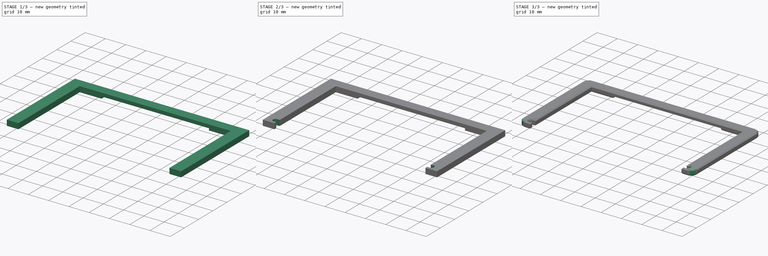
[diagram: build sequence overview — one tinted view per stage of 3, left to right]
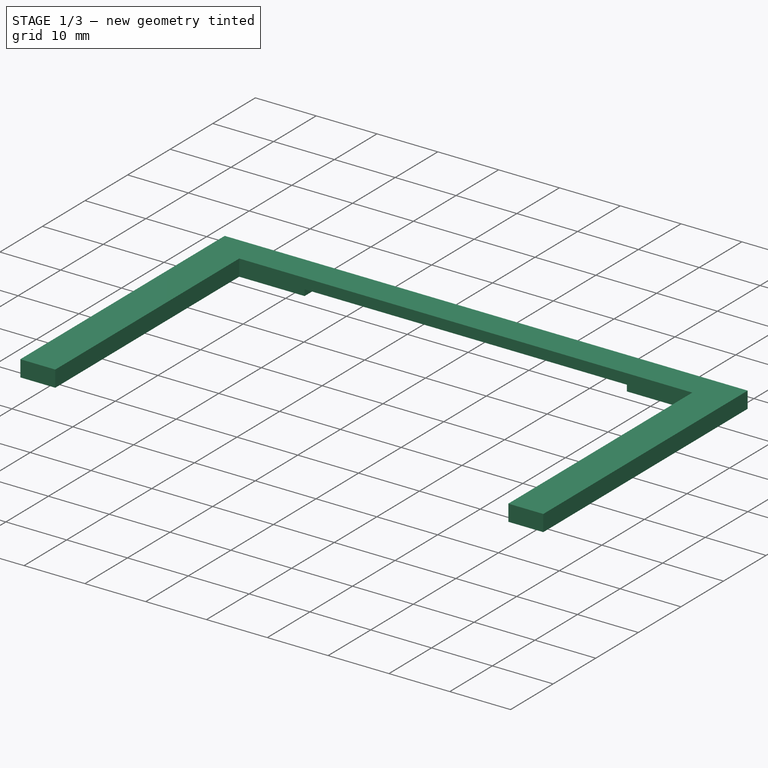
[diagram: stage 1 of 3 — iso view after this stage's code; geometry added in this stage tinted green]
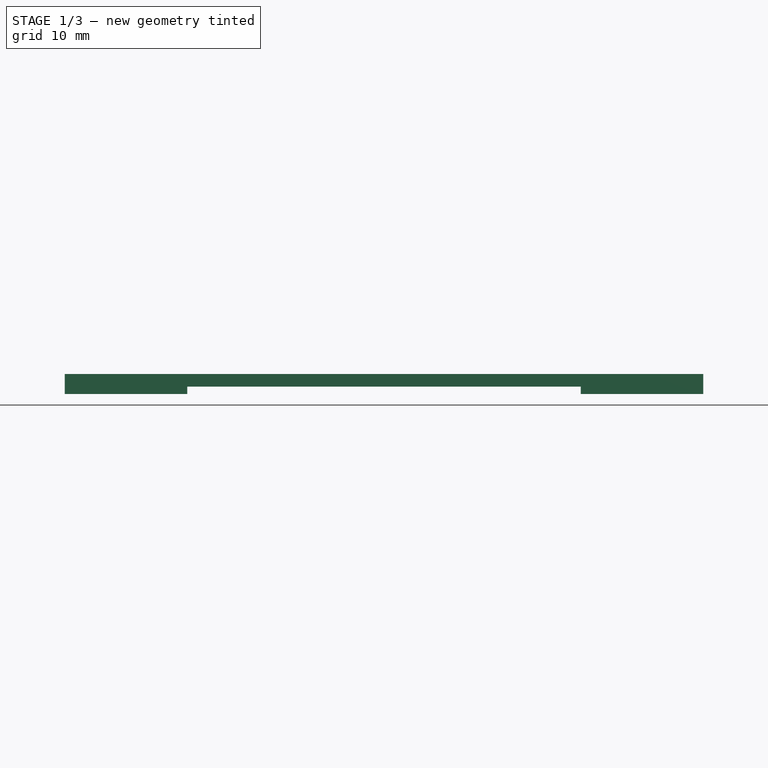
[diagram: stage 1 of 3 — front view after this stage's code; geometry added in this stage tinted green]
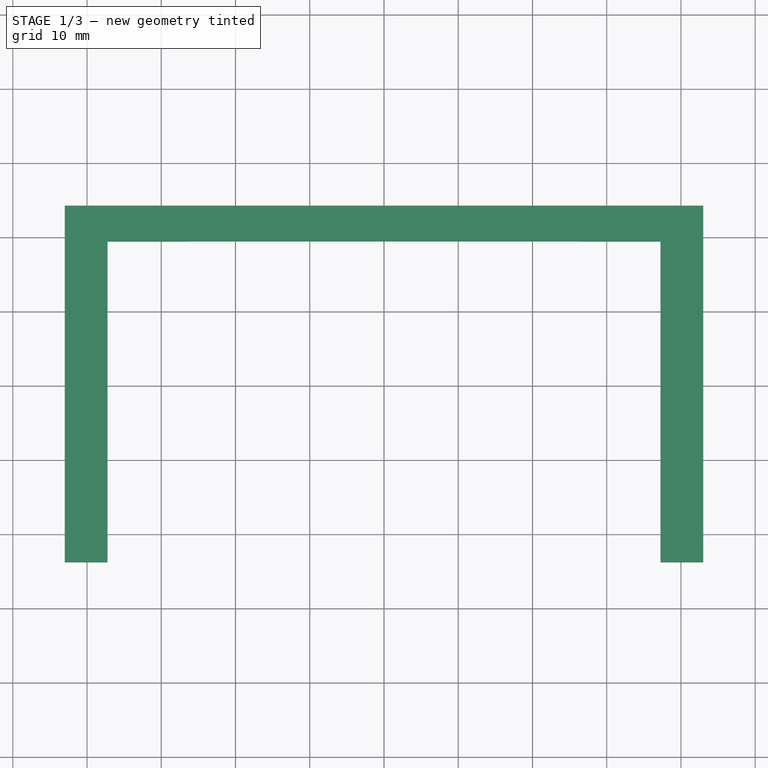
[diagram: stage 1 of 3 — top view after this stage's code; geometry added in this stage tinted green]
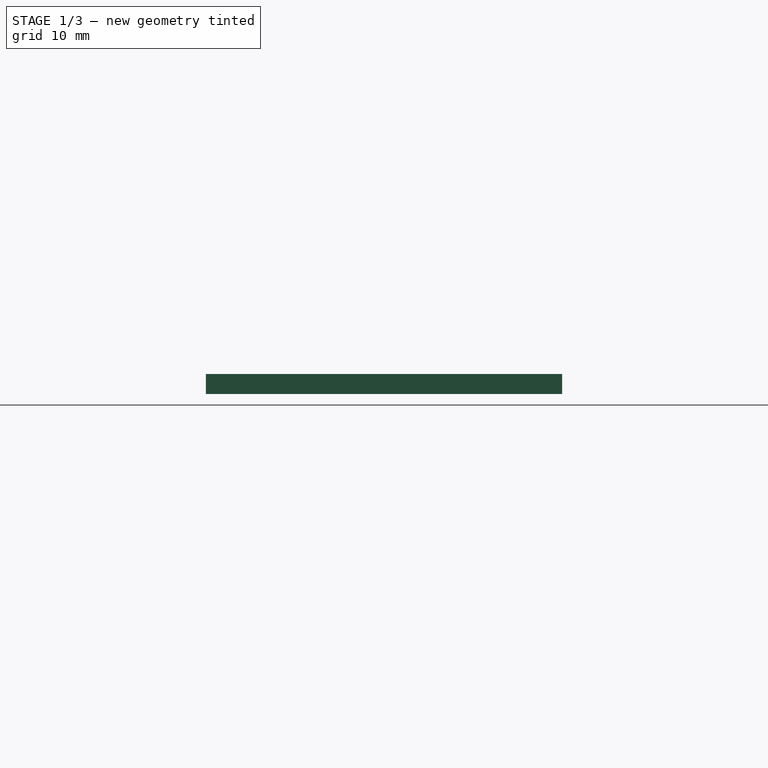
[diagram: stage 1 of 3 — right view after this stage's code; geometry added in this stage tinted green]
FCSTD DOCUMENT  (FreeCAD 0.21RUnknown)
Label: screen-frame
License: All rights reserved
LicenseURL: http://en.wikipedia.org/wiki/All_rights_reserved
objects: Sketcher::SketchObject×4, PartDesign::Pocket×2, PartDesign::Pad×1, PartDesign::Fillet×1, PartDesign::Chamfer×1, PartDesign::Body×1
note: 15 computed .brp shape members not serialized (recipe doc carries the construction recipe); baked Part::Feature solids carry a one-line shape summary decoded from their .brp

FEATURE [Sketcher::SketchObject] Sketch
  FullyConstrained = true
  MapMode = 5
  Support = -> [XY_Plane]
  sketch-geometry (20):
    g0: LineSegment StartX=-41 StartY=-23.75 StartZ=0 EndX=-41 EndY=23.75 EndZ=0
    g1: LineSegment StartX=-41 StartY=23.75 StartZ=0 EndX=41 EndY=23.75 EndZ=0
    g2: LineSegment StartX=41 StartY=23.75 StartZ=0 EndX=41 EndY=-23.75 EndZ=0
    g3: LineSegment StartX=41 StartY=-23.75 StartZ=0 EndX=-41 EndY=-23.75 EndZ=0
    g4: GeomPoint X=0 Y=0 Z=0
    g5: LineSegment StartX=-38.5 StartY=21.25 StartZ=0 EndX=38.5 EndY=21.25 EndZ=0
    g6: LineSegment StartX=38.5 StartY=21.25 StartZ=0 EndX=38.5 EndY=-21.25 EndZ=0
    g7: LineSegment StartX=38.5 StartY=-21.25 StartZ=0 EndX=-38.5 EndY=-21.25 EndZ=0
    g8: LineSegment StartX=-38.5 StartY=-21.25 StartZ=0 EndX=-38.5 EndY=21.25 EndZ=0
    g9: LineSegment StartX=-41 StartY=23.75 StartZ=0 EndX=-38.5 EndY=21.25 EndZ=0
    g10: LineSegment StartX=-41 StartY=-23.75 StartZ=0 EndX=-38.5 EndY=-21.25 EndZ=0
    g11: LineSegment StartX=38.5 StartY=-21.25 StartZ=0 EndX=41 EndY=-23.75 EndZ=0
    g12: Circle CenterX=-38.5 CenterY=21.25 CenterZ=0 NormalX=0 NormalY=0 NormalZ=1 AngleXU=0 Radius=1.25
    g13: Circle CenterX=38.5 CenterY=21.25 CenterZ=0 NormalX=0 NormalY=0 NormalZ=1 AngleXU=0 Radius=1.25
    g14: Circle CenterX=38.5 CenterY=-21.25 CenterZ=0 NormalX=0 NormalY=0 NormalZ=1 AngleXU=0 Radius=1.25
    g15: Circle CenterX=-38.5 CenterY=-21.25 CenterZ=0 NormalX=0 NormalY=0 NormalZ=1 AngleXU=0 Radius=1.25
    g16: LineSegment StartX=-37.1 StartY=-23.75 StartZ=0 EndX=37.1 EndY=-23.75 EndZ=0
    g17: LineSegment StartX=37.1 StartY=-23.75 StartZ=0 EndX=37.1 EndY=19.35 EndZ=0
    g18: LineSegment StartX=37.1 StartY=19.35 StartZ=0 EndX=-37.1 EndY=19.35 EndZ=0
    g19: LineSegment StartX=-37.1 StartY=19.35 StartZ=0 EndX=-37.1 EndY=-23.75 EndZ=0
  constraints (49):
    c: Coincident(g0,g1)
    c: Coincident(g1,g2)
    c: Coincident(g2,g3)
    c: Coincident(g3,g0)
    c: Horizontal(g1)
    c: Horizontal(g3)
    c: Vertical(g0)
    c: Vertical(g2)
    c: Symmetric(g1,g0,g4)
    c: Coincident(g4,g-1)
    c: DistanceX(g1,g1) = 82
    c: DistanceY(g2,g2) = 47.5
    c: Coincident(g5,g6)
    c: Coincident(g6,g7)
    c: Coincident(g7,g8)
    c: Coincident(g8,g5)
    c: Horizontal(g5)
    c: Horizontal(g7)
    c: Vertical(g6)
    c: Vertical(g8)
    c: DistanceY(g8,g8) = 42.5
    c: DistanceX(g5,g5) = 77
    c: Coincident(g9,g0)
    c: Coincident(g9,g5)
    c: Coincident(g10,g0)
    c: Coincident(g10,g7)
    c: Coincident(g11,g6)
    c: Coincident(g11,g2)
    c: Equal(g11,g10)
    c: Equal(g10,g9)
    c: Coincident(g12,g5)
    c: Diameter(g12) = 2.5
    c: Coincident(g13,g5)
    c: Coincident(g14,g6)
    c: Coincident(g15,g7)
    c: Equal(g15,g12)
    c: Equal(g12,g13)
    c: Equal(g13,g14)
    c: Coincident(g16,g17)
    c: Coincident(g17,g18)
    c: Coincident(g18,g19)
    c: Coincident(g19,g16)
    c: Horizontal(g16)
    c: Vertical(g17)
    c: Vertical(g19)
    c: PointOnObject(g16,g3)
    c: Symmetric(g17,g18,g-2)
    c: DistanceX(g18,g18) = 74.2
    c: DistanceY(g17,g17) = 43.1
FEATURE [Sketcher::SketchObject] Sketch001
  ExternalGeometry = -> [Sketch]
  FullyConstrained = true
  MapMode = 5
  Support = -> [XY_Plane]
  sketch-geometry (8):
    g0: LineSegment StartX=-37.25 StartY=-23.75 StartZ=0 EndX=-37.25 EndY=19.45 EndZ=0
    g1: LineSegment StartX=-37.25 StartY=19.45 StartZ=0 EndX=37.25 EndY=19.45 EndZ=0
    g2: LineSegment StartX=37.25 StartY=19.45 StartZ=0 EndX=37.25 EndY=-23.75 EndZ=0
    g3: LineSegment StartX=43 StartY=-23.75 StartZ=0 EndX=43 EndY=24.25 EndZ=0
    g4: LineSegment StartX=43 StartY=24.25 StartZ=0 EndX=-43 EndY=24.25 EndZ=0
    g5: LineSegment StartX=-43 StartY=24.25 StartZ=0 EndX=-43 EndY=-23.75 EndZ=0
    g6: LineSegment StartX=37.25 StartY=-23.75 StartZ=0 EndX=43 EndY=-23.75 EndZ=0
    g7: LineSegment StartX=-43 StartY=-23.75 StartZ=0 EndX=-37.25 EndY=-23.75 EndZ=0
  constraints (24):
    c: PointOnObject(g0,g-9)
    c: Vertical(g0)
    c: Coincident(g1,g0)
    c: Horizontal(g1)
    c: Coincident(g2,g1)
    c: PointOnObject(g2,g-9)
    c: Vertical(g2)
    c: DistanceY(g-4,g0) = 0.1
    c: DistanceX(g0,g-4) = 0.15
    c: DistanceX(g-5,g1) = 0.15
    c: Vertical(g3)
    c: Coincident(g4,g3)
    c: Horizontal(g4)
    c: Coincident(g5,g4)
    c: Vertical(g5)
    c: DistanceX(g4,g4) = 86
    c: DistanceY(g3,g3) = 48
    c: Coincident(g6,g2)
    c: Coincident(g6,g3)
    c: Horizontal(g6)
    c: Coincident(g7,g5)
    c: Coincident(g7,g0)
    c: Horizontal(g7)
    c: Equal(g7,g6)
FEATURE [PartDesign::Pad] Pad
  Direction = (0,0,1)
  Length = 2.7
  Length2 = 10
  Profile = -> Sketch001
  ReferenceAxis = -> Sketch001 [N_Axis]
  Type = 0
FEATURE [Sketcher::SketchObject] Sketch002
  FullyConstrained = false
  MapMode = 5
  Placement = pos=(0,0,0) rot=(1,0,0;3.14159rad)
  Support = -> [Pad]
  sketch-geometry (5):
    g0: LineSegment StartX=-26.5 StartY=-24.9057 StartZ=0 EndX=-26.5 EndY=-18.9057 EndZ=0
    g1: LineSegment StartX=-26.5 StartY=-18.9057 StartZ=0 EndX=26.5 EndY=-18.9057 EndZ=0
    g2: LineSegment StartX=26.5 StartY=-18.9057 StartZ=0 EndX=26.5 EndY=-24.9057 EndZ=0
    g3: LineSegment StartX=26.5 StartY=-24.9057 StartZ=0 EndX=-26.5 EndY=-24.9057 EndZ=0
    g4: GeomPoint X=0 Y=-21.9057 Z=0
  constraints (12):
    c: Coincident(g0,g1)
    c: Coincident(g1,g2)
    c: Coincident(g2,g3)
    c: Coincident(g3,g0)
    c: Horizontal(g1)
    c: Horizontal(g3)
    c: Vertical(g0)
    c: Vertical(g2)
    c: Symmetric(g1,g0,g4)
    c: PointOnObject(g4,g-2)
    c: DistanceX(g3,g3) = 53
    c: DistanceY(g2,g2) = 6
FEATURE [PartDesign::Pocket] Pocket
  BaseFeature = -> Pad
  Direction = (0,0,1)
  Length = 1
  Length2 = 5
  Profile = -> Sketch002
  ReferenceAxis = -> Sketch002 [N_Axis]
  Type = 0
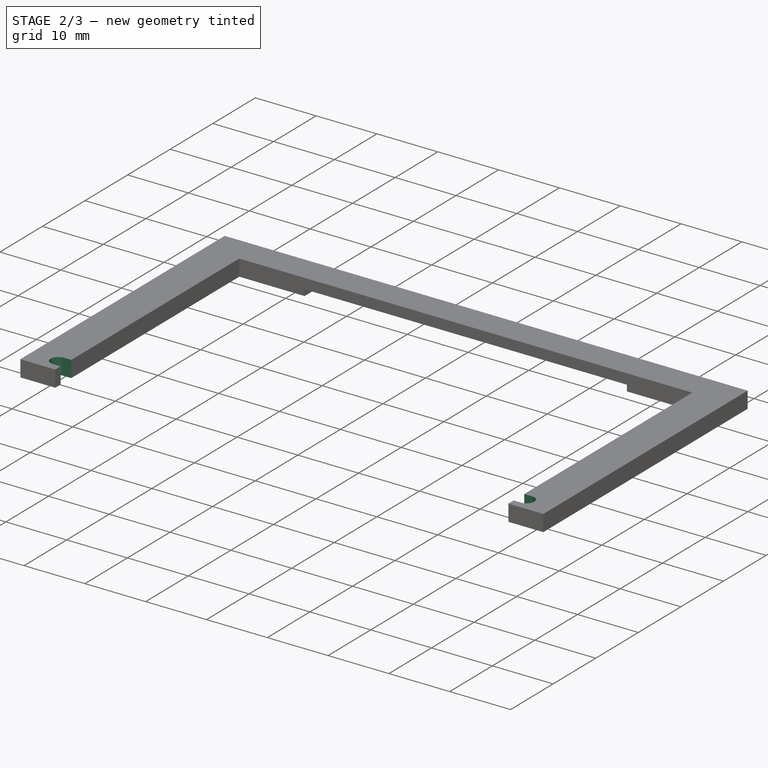
[diagram: stage 2 of 3 — iso view after this stage's code; geometry added in this stage tinted green]
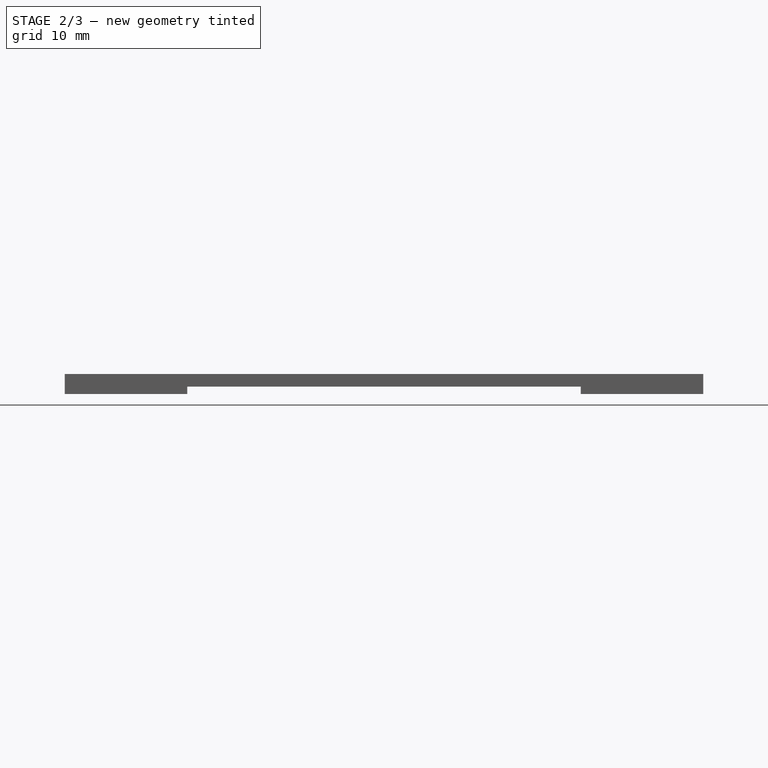
[diagram: stage 2 of 3 — front view after this stage's code; geometry added in this stage tinted green]
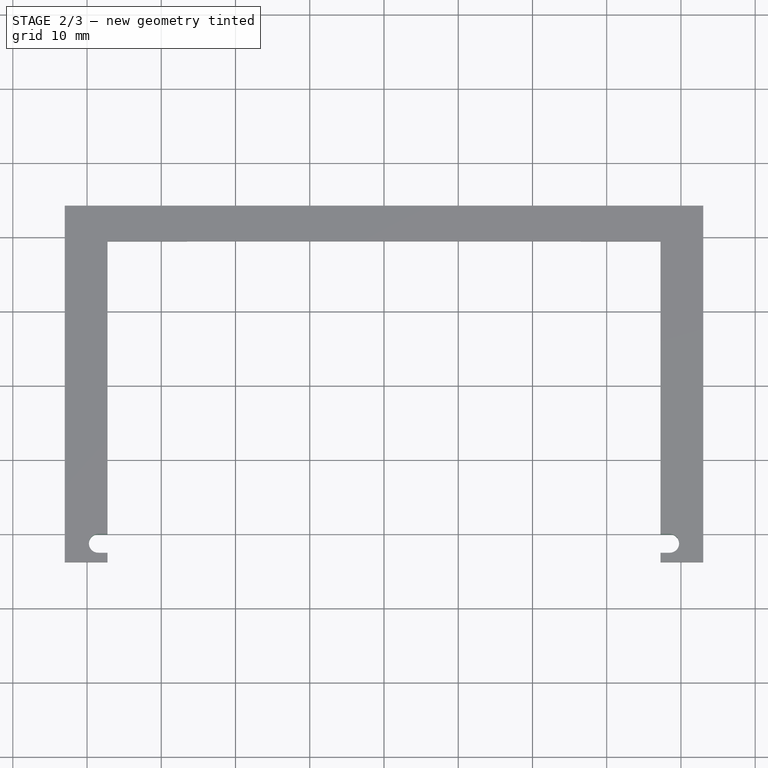
[diagram: stage 2 of 3 — top view after this stage's code; geometry added in this stage tinted green]
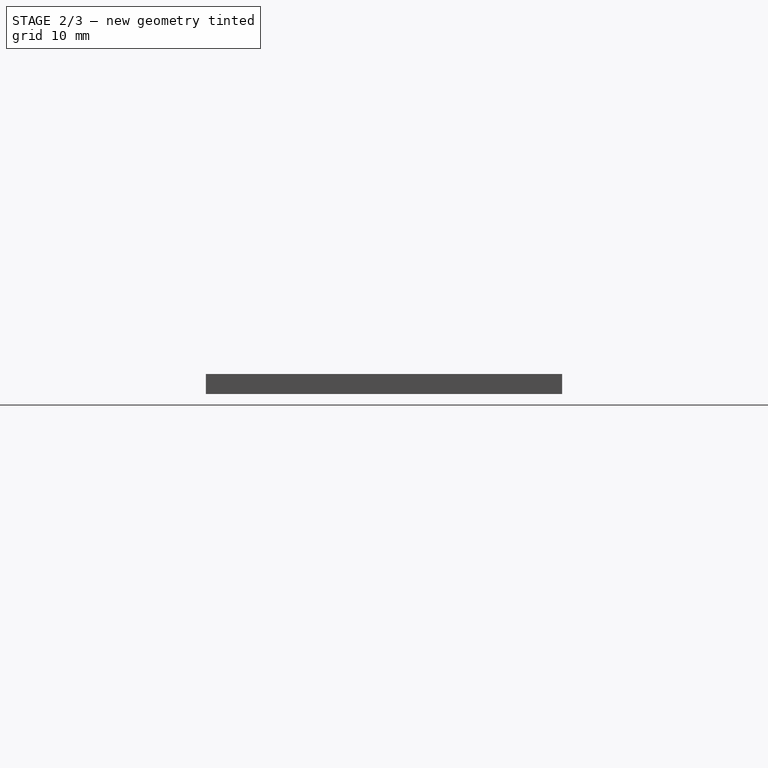
[diagram: stage 2 of 3 — right view after this stage's code; geometry added in this stage tinted green]
FEATURE [Sketcher::SketchObject] Sketch003
  ExternalGeometry = -> [Sketch]
  FullyConstrained = true
  MapMode = 5
  Placement = pos=(0,0,0) rot=(1,0,0;3.14159rad)
  Support = -> [Pocket]
  sketch-geometry (12):
    g0: ArcOfCircle CenterX=38.5 CenterY=21.25 CenterZ=0 NormalX=0 NormalY=0 NormalZ=1 AngleXU=0 Radius=1.25 StartAngle=4.71239 EndAngle=7.85398
    g1: LineSegment StartX=38.5 StartY=22.5 StartZ=0 EndX=38.5 EndY=21.25 EndZ=0
    g2: LineSegment StartX=38.5 StartY=21.25 StartZ=0 EndX=38.5 EndY=20 EndZ=0
    g3: ArcOfCircle CenterX=-38.5 CenterY=21.25 CenterZ=0 NormalX=0 NormalY=0 NormalZ=1 AngleXU=0 Radius=1.25 StartAngle=1.5708 EndAngle=4.71239
    g4: LineSegment StartX=-38.5 StartY=22.5 StartZ=0 EndX=-38.5 EndY=21.25 EndZ=0
    g5: LineSegment StartX=-38.5 StartY=21.25 StartZ=0 EndX=-38.5 EndY=20 EndZ=0
    g6: LineSegment StartX=-38.5 StartY=22.5 StartZ=0 EndX=-36 EndY=22.5 EndZ=0
    g7: LineSegment StartX=-36 StartY=22.5 StartZ=0 EndX=-36 EndY=20 EndZ=0
    g8: LineSegment StartX=-38.5 StartY=20 StartZ=0 EndX=-36 EndY=20 EndZ=0
    g9: LineSegment StartX=38.5 StartY=22.5 StartZ=0 EndX=36 EndY=22.5 EndZ=0
    g10: LineSegment StartX=38.5 StartY=20 StartZ=0 EndX=36 EndY=20 EndZ=0
    g11: LineSegment StartX=36 StartY=22.5 StartZ=0 EndX=36 EndY=20 EndZ=0
  constraints (32):
    c: Coincident(g0,g-4)
    c: PointOnObject(g0,g-4)
    c: Coincident(g1,g0)
    c: Coincident(g1,g0)
    c: Vertical(g1)
    c: Coincident(g2,g0)
    c: Coincident(g2,g0)
    c: Vertical(g2)
    c: Coincident(g3,g-3)
    c: PointOnObject(g3,g-3)
    c: Coincident(g4,g3)
    c: Coincident(g4,g3)
    c: Coincident(g5,g3)
    c: Coincident(g5,g3)
    c: Vertical(g5)
    c: Vertical(g4)
    c: Coincident(g6,g3)
    c: Horizontal(g6)
    c: Coincident(g7,g6)
    c: Vertical(g7)
    c: Coincident(g8,g3)
    c: Coincident(g8,g7)
    c: Horizontal(g8)
    c: Equal(g7,g8)
    c: Coincident(g9,g0)
    c: Horizontal(g9)
    c: Coincident(g10,g0)
    c: Horizontal(g10)
    c: Coincident(g11,g9)
    c: Coincident(g11,g10)
    c: Vertical(g11)
    c: Equal(g11,g9)
FEATURE [PartDesign::Pocket] Pocket001
  BaseFeature = -> Pocket
  Direction = (0,0,1)
  Length = 5
  Length2 = 5
  Profile = -> Sketch003
  ReferenceAxis = -> Sketch003 [N_Axis]
  Type = 1
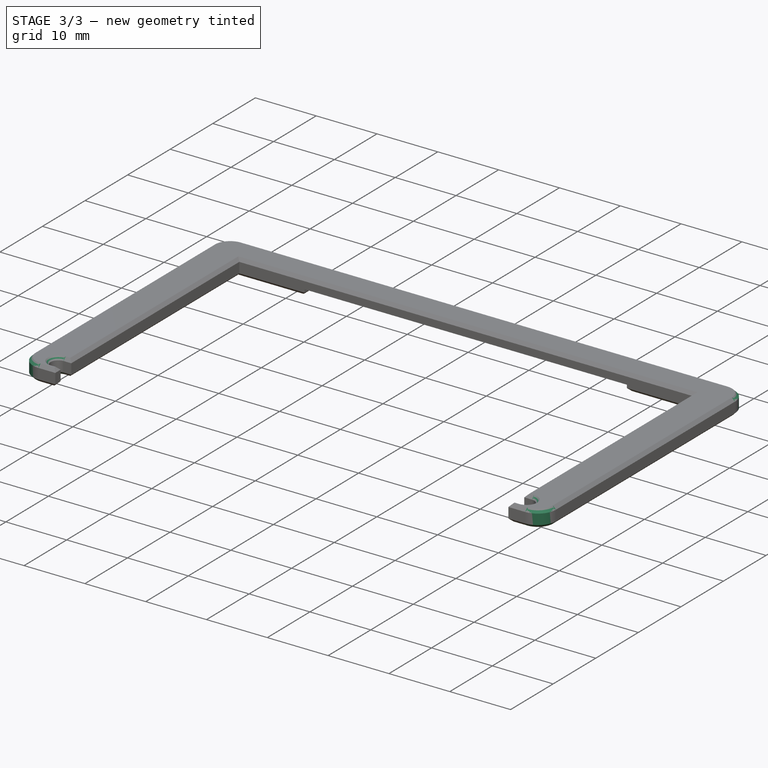
[diagram: stage 3 of 3 — iso view after this stage's code; geometry added in this stage tinted green]
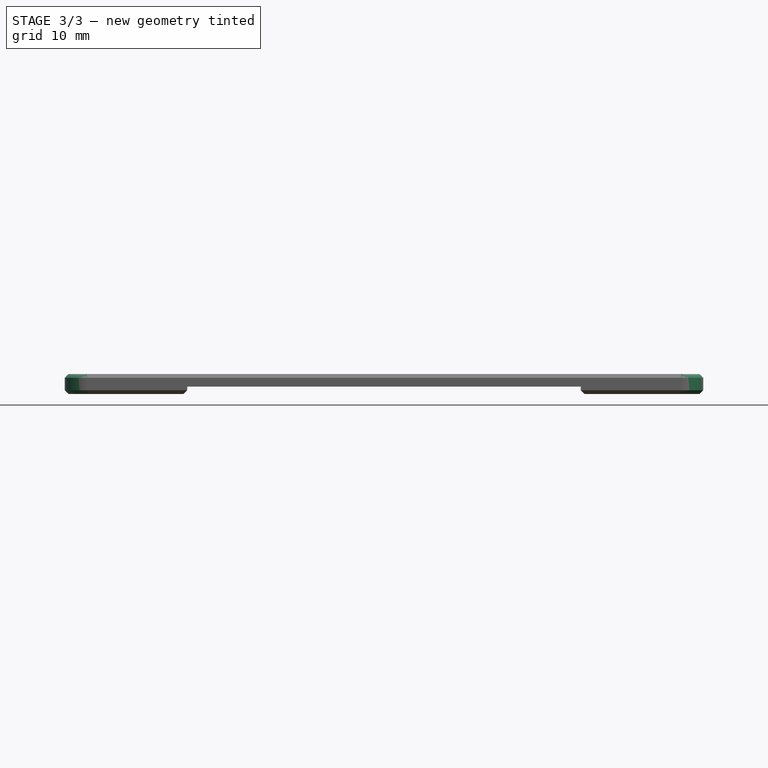
[diagram: stage 3 of 3 — front view after this stage's code; geometry added in this stage tinted green]
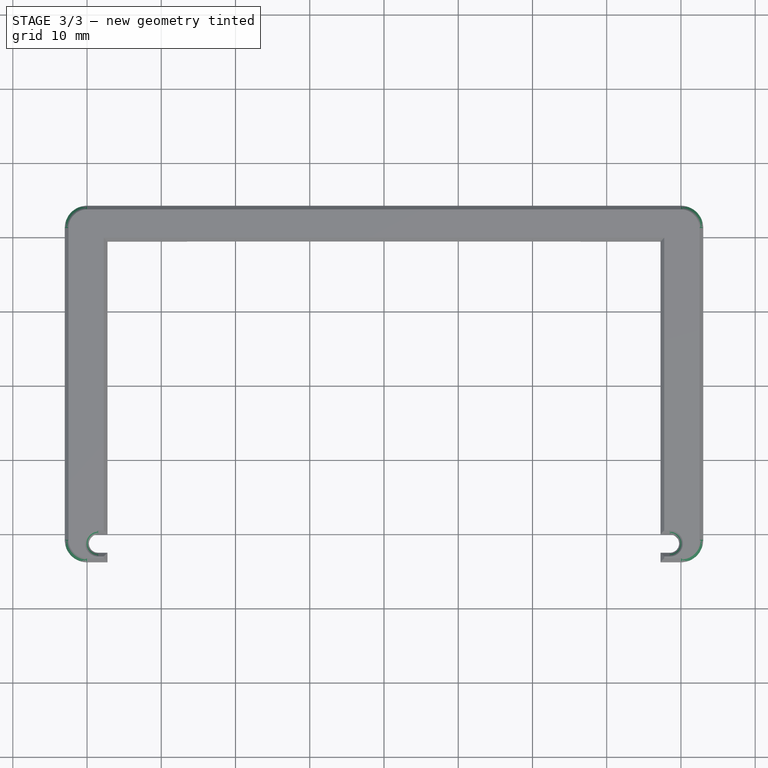
[diagram: stage 3 of 3 — top view after this stage's code; geometry added in this stage tinted green]
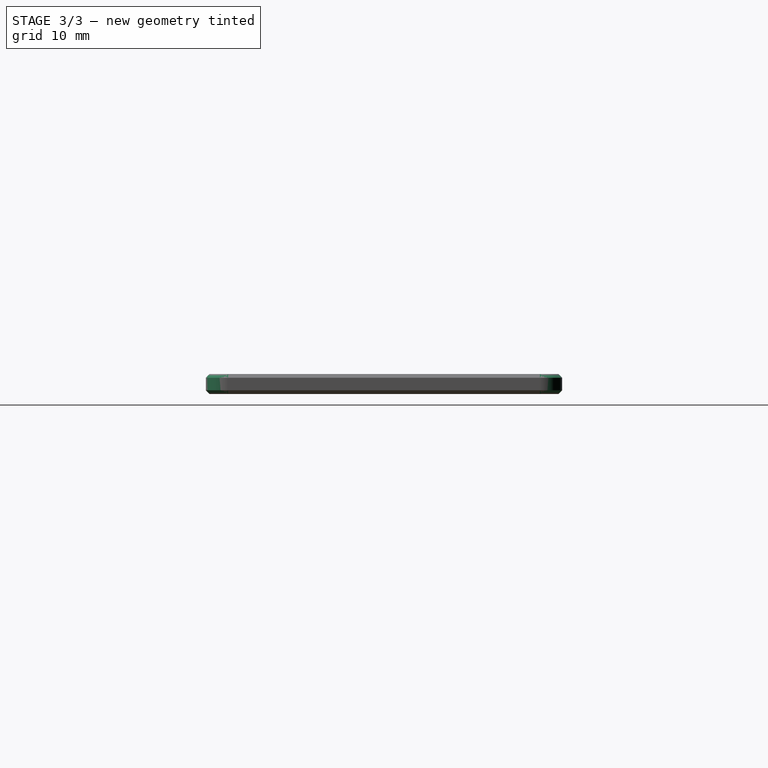
[diagram: stage 3 of 3 — right view after this stage's code; geometry added in this stage tinted green]
FEATURE [PartDesign::Fillet] Fillet
  Base = -> Pocket001 [Edge46,Edge36,Edge31,Edge30]
  BaseFeature = -> Pocket001
  Radius = 3
  SupportTransform = false
  UseAllEdges = false
FEATURE [PartDesign::Chamfer] Chamfer
  Angle = 45
  Base = -> Fillet [Face1,Face15,Face14]
  BaseFeature = -> Fillet
  ChamferType = 0
  FlipDirection = false
  Size = 0.5
  Size2 = 1
  SupportTransform = false
  UseAllEdges = false
FEATURE [PartDesign::Body] Body
  Group = -> [Sketch,Sketch001,Pad,Sketch002,Pocket,Sketch003,Pocket001,Fillet,Chamfer]
  Origin = -> Origin
  Tip = -> Chamfer
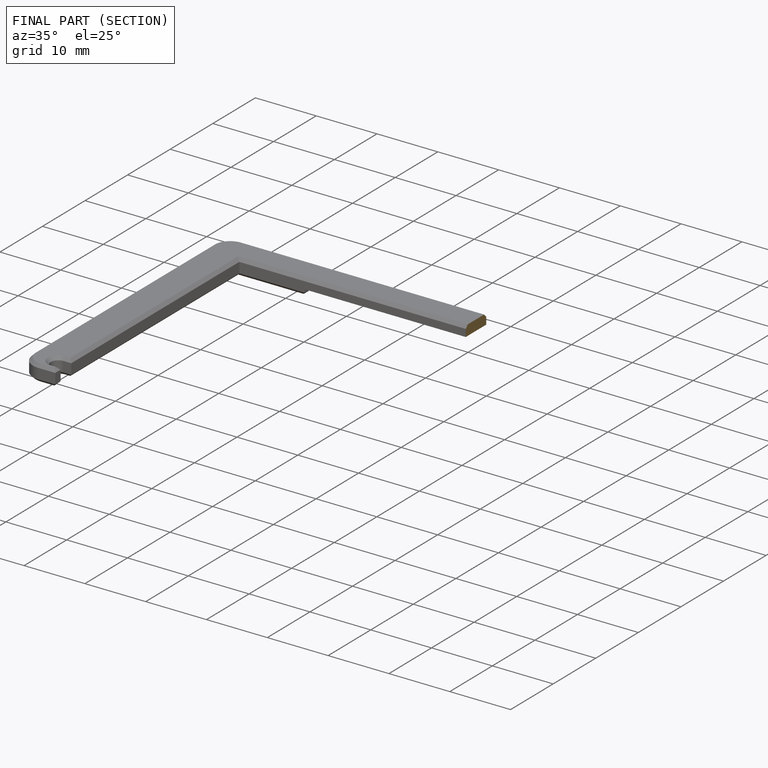
[diagram: finished part — half-section view (interior)]
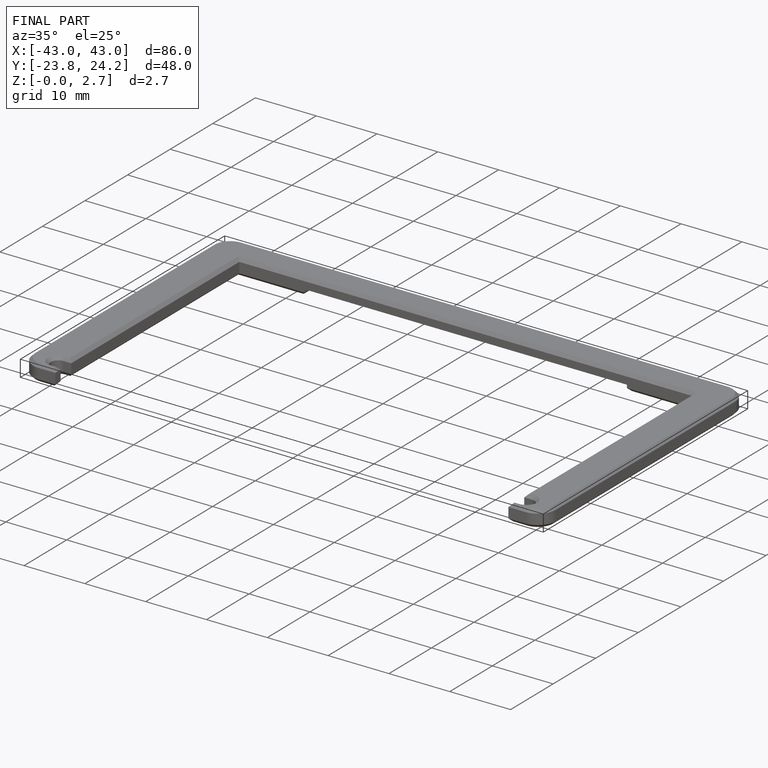
[diagram: finished part — iso view with bounding-box wireframe]
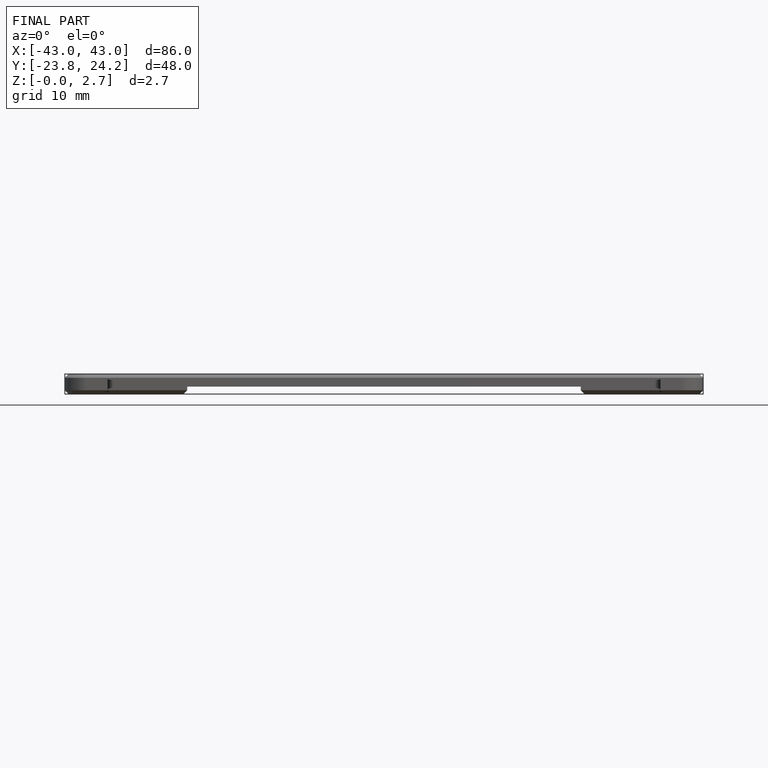
[diagram: finished part — front view with bounding-box wireframe]
